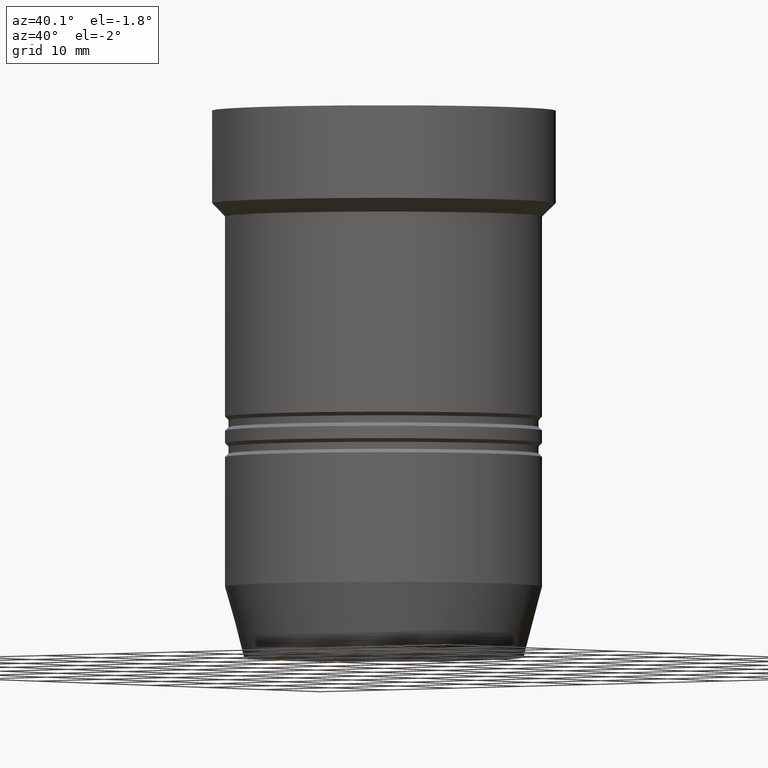
[diagram: clean part render]
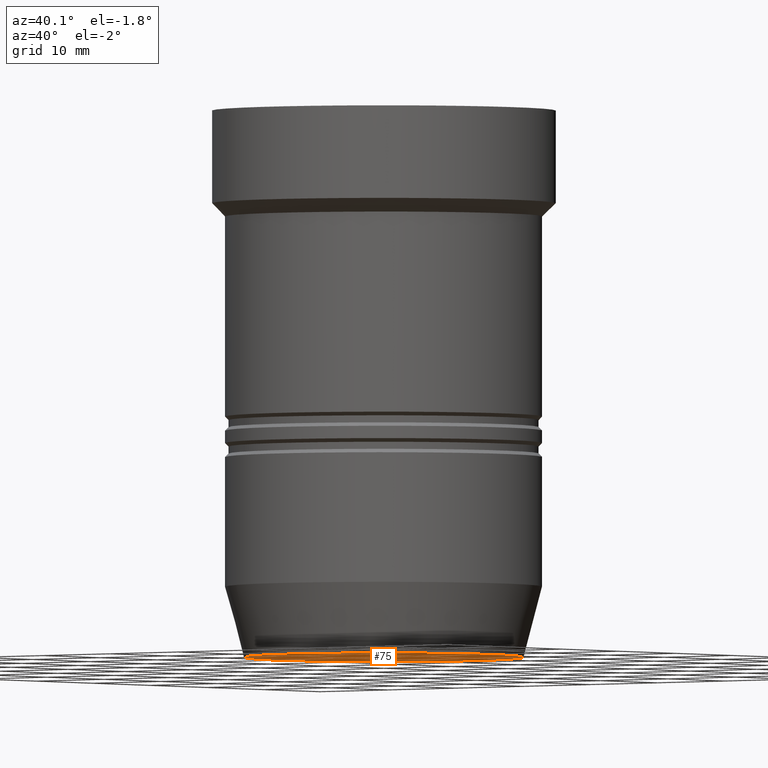
[diagram: same view with one face highlighted and labeled with its STEP entity id]
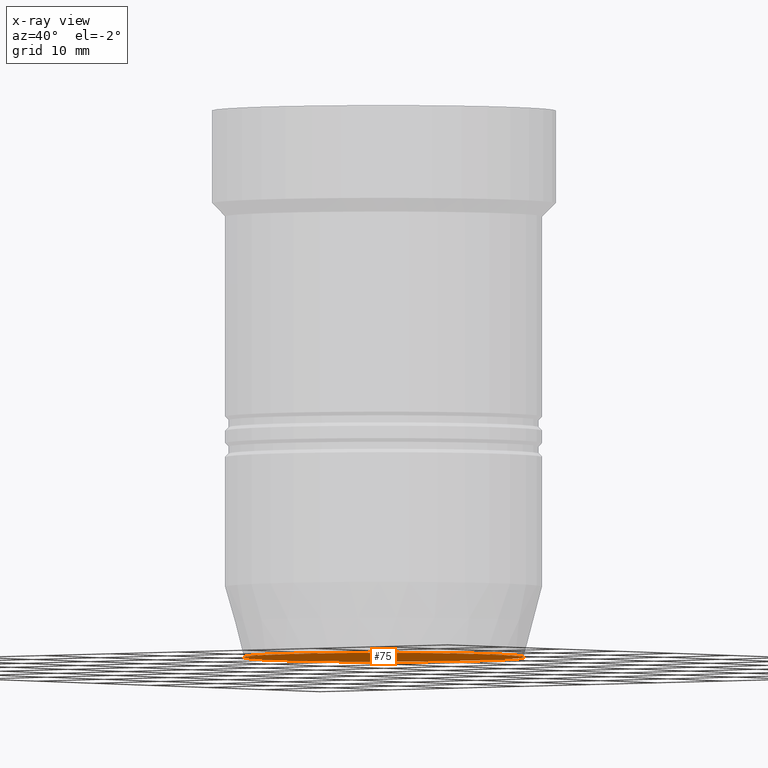
[diagram: x-ray of the same camera — body ghosted, the highlighted face saturated]
A machine part, auxiliary view. The second image highlights one B-rep face of the part: STEP entity #75.
The next image is the same camera in x-ray: the body ghosted, the highlighted face saturated — about 0% of this face is hidden behind the body in this view.
In plain terms, the highlighted planar face has unit normal (0, 0, -1).
Its self-contained STEP definition (entity closure, byte-faithful):
#75=ADVANCED_FACE('',(#90),#91,.T.);
#90=FACE_OUTER_BOUND('',#130,.T.);
#91=PLANE('',#131);
#130=EDGE_LOOP('',(#170));
#131=AXIS2_PLACEMENT_3D('',#171,#172,#173);
#170=ORIENTED_EDGE('',*,*,#238,.F.);
#171=CARTESIAN_POINT('',(3.7964050773568E-015,7.92820323227918,-62.0));
#172=DIRECTION('',(6.12323399573677E-017,1.22464679914735E-016,-1.0));
#173=DIRECTION('',(1.23259516440783E-032,-1.0,-1.22464679914735E-016));
#238=EDGE_CURVE('',#251,#251,#252,.T.);
#251=VERTEX_POINT('',#277);
#252=CIRCLE('',#278,15.8564064645583);
#277=CARTESIAN_POINT('',(3.7964050773568E-015,15.8564064645584,-62.0));
#278=AXIS2_PLACEMENT_3D('',#303,#304,#305);
#303=CARTESIAN_POINT('',(3.7964050773568E-015,7.59281015471359E-015,-62.0));
#304=DIRECTION('',(-6.12323399573677E-017,-1.22464679914735E-016,1.0));
#305=DIRECTION('',(-1.23259516440783E-032,1.0,1.22464679914735E-016));